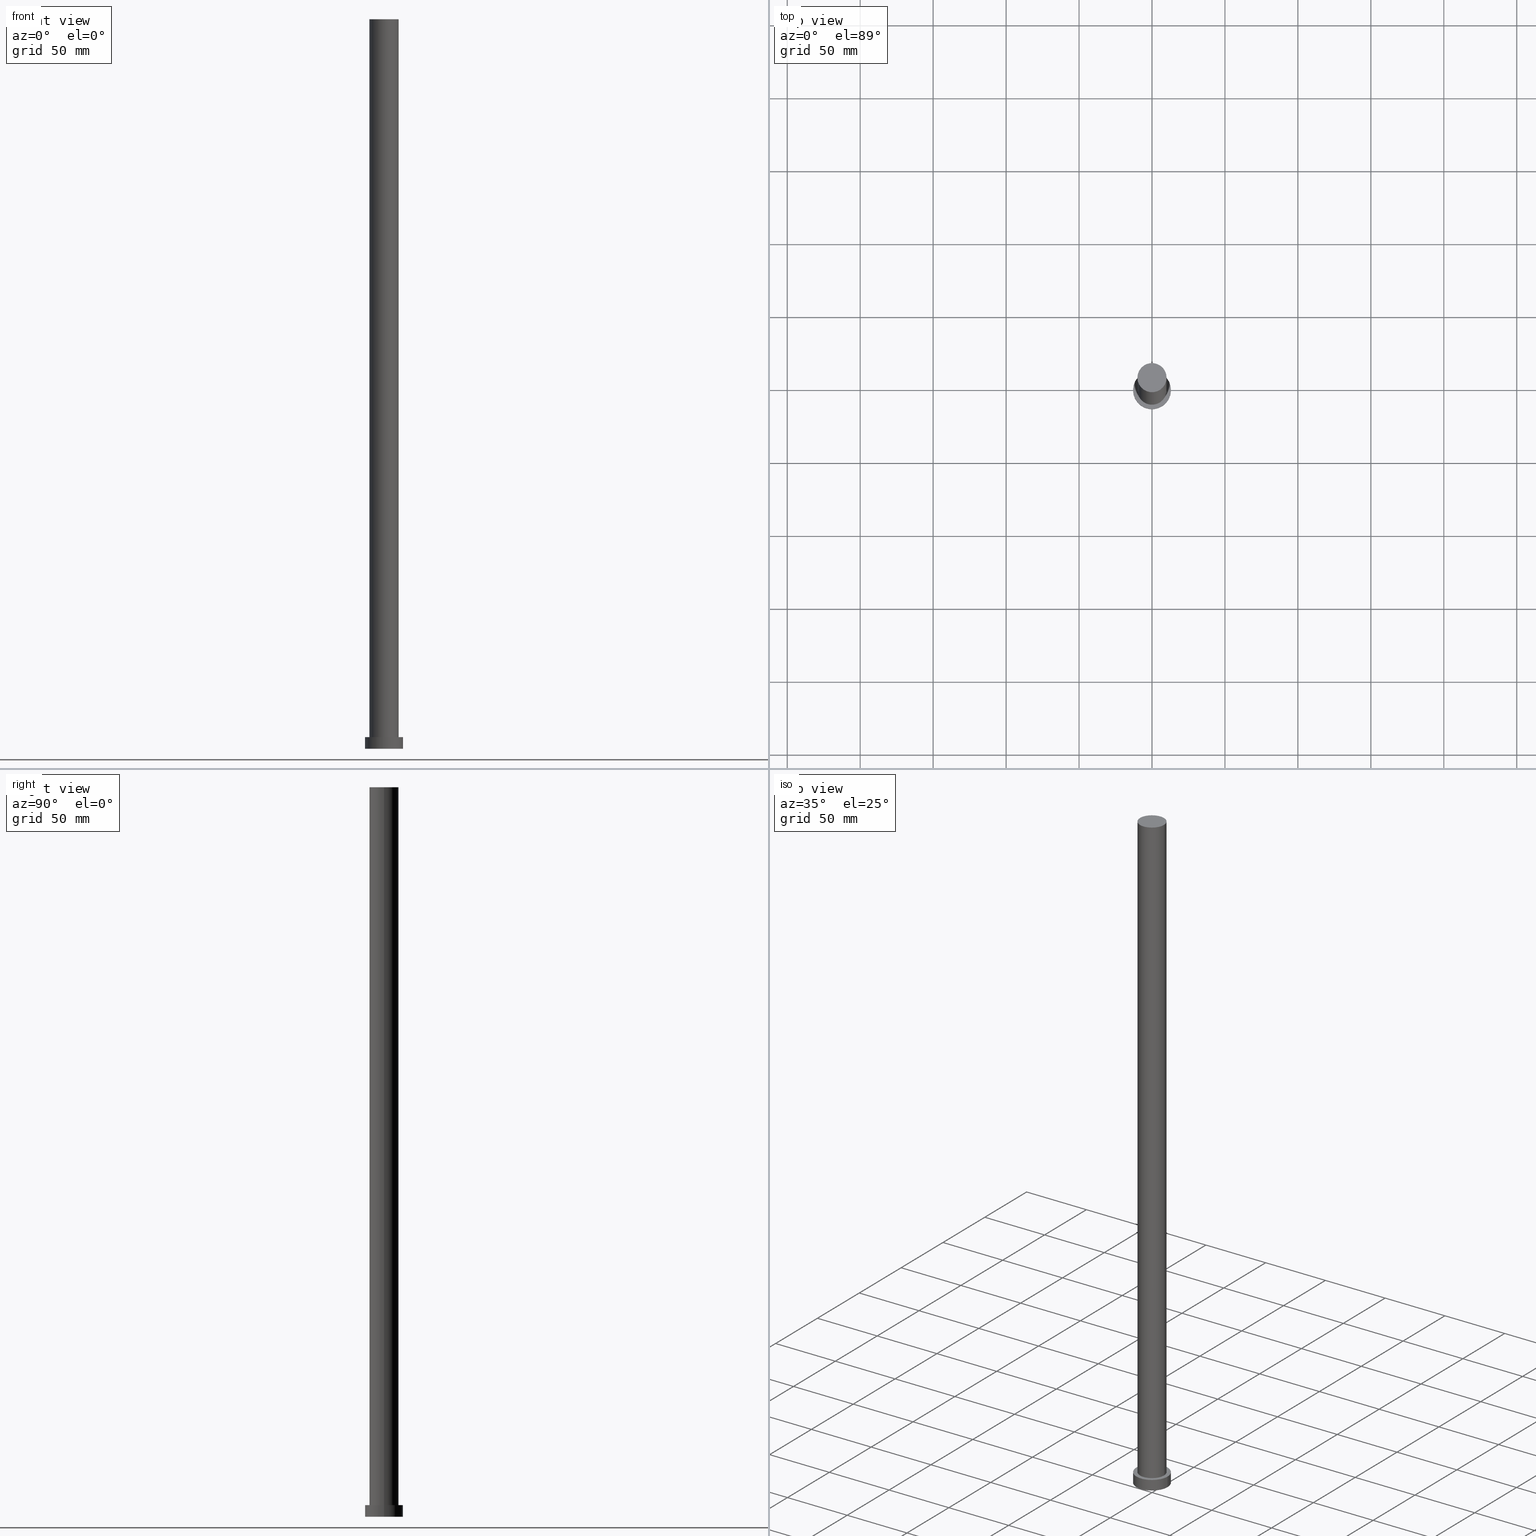
[diagram: canonical four-view strip — front | top / right | iso, engineering-drawing reading convention]
A machine part, canonical four-view strip (front | top / right | iso — engineering-drawing reading convention). The complete STEP part file that produces these views, byte-faithful:
ISO-10303-21;
HEADER;
FILE_DESCRIPTION (( 'STEP AP203' ),
    '1' );
FILE_NAME ('dbc2.STEP',
    '2023-02-13T08:43:27',
    ( '' ),
    ( '' ),
    'SwSTEP 2.0',
    'SolidWorks 2019',
    '' );
FILE_SCHEMA (( 'CONFIG_CONTROL_DESIGN' ));
ENDSEC;

DATA;
#1 = CARTESIAN_POINT ( 'NONE',  ( -13.00000000000000178, 0.000000000000000000, 8.000000000000000000 ) ) ;
#2 = LOCAL_TIME ( 9, 43, 27.00000000000000000, #206 ) ;
#3 = CARTESIAN_POINT ( 'NONE',  ( 0.000000000000000000, 0.000000000000000000, 500.0000000000000000 ) ) ;
#4 = EDGE_CURVE ( 'NONE', #25, #56, #87, .T. ) ;
#5 = FACE_OUTER_BOUND ( 'NONE', #20, .T. ) ;
#6 = PERSON ( 'NEUR�EN�', 'NEUR�EN�', 'NEUR�EN�', ('NEUR�EN�'), ('NEUR�EN�'), ('NEUR�EN�') ) ;
#7 = ADVANCED_FACE ( 'NONE', ( #208 ), #131, .F. ) ;
#8 = CYLINDRICAL_SURFACE ( 'NONE', #125, 13.00000000000000178 ) ;
#9 = PERSON_AND_ORGANIZATION ( #6, #83 ) ;
#10 = DIRECTION ( 'NONE',  ( -0.000000000000000000, -0.000000000000000000, -1.000000000000000000 ) ) ;
#11 = COORDINATED_UNIVERSAL_TIME_OFFSET ( 1, 0, .AHEAD. ) ;
#12 = DIRECTION ( 'NONE',  ( 0.000000000000000000, 0.000000000000000000, 1.000000000000000000 ) ) ;
#13 = APPLICATION_CONTEXT ( 'configuration controlled 3d designs of mechanical parts and assemblies' ) ;
#14 = VERTEX_POINT ( 'NONE', #84 ) ;
#15 = SECURITY_CLASSIFICATION_LEVEL ( 'unclassified' ) ;
#16 = DIRECTION ( 'NONE',  ( -0.000000000000000000, -0.000000000000000000, -1.000000000000000000 ) ) ;
#17 = ORIENTED_EDGE ( 'NONE', *, *, #60, .T. ) ;
#18 = CALENDAR_DATE ( 2023, 13, 2 ) ;
#19 = DIRECTION ( 'NONE',  ( 0.000000000000000000, 0.000000000000000000, 1.000000000000000000 ) ) ;
#20 = EDGE_LOOP ( 'NONE', ( #226, #59, #42, #55 ) ) ;
#21 = VECTOR ( 'NONE', #33, 1000.000000000000000 ) ;
#22 = CARTESIAN_POINT ( 'NONE',  ( -13.00000000000000178, 0.000000000000000000, 0.000000000000000000 ) ) ;
#23 = APPLICATION_CONTEXT ( 'configuration controlled 3d designs of mechanical parts and assemblies' ) ;
#24 = PERSON_AND_ORGANIZATION ( #6, #83 ) ;
#25 = VERTEX_POINT ( 'NONE', #220 ) ;
#26 = EDGE_CURVE ( 'NONE', #56, #105, #240, .T. ) ;
#27 = CARTESIAN_POINT ( 'NONE',  ( 0.000000000000000000, 0.000000000000000000, 500.0000000000000000 ) ) ;
#28 = APPROVAL_STATUS ( 'not_yet_approved' ) ;
#29 = CARTESIAN_POINT ( 'NONE',  ( 0.000000000000000000, 0.000000000000000000, 8.000000000000000000 ) ) ;
#30 = PERSON_AND_ORGANIZATION_ROLE ( 'creator' ) ;
#31 = DIRECTION ( 'NONE',  ( 1.000000000000000000, 0.000000000000000000, 0.000000000000000000 ) ) ;
#32 = PERSON_AND_ORGANIZATION ( #6, #83 ) ;
#33 = DIRECTION ( 'NONE',  ( -0.000000000000000000, -0.000000000000000000, -1.000000000000000000 ) ) ;
#34 = PERSON_AND_ORGANIZATION ( #6, #83 ) ;
#35 = APPROVAL_PERSON_ORGANIZATION ( #24, #95, #86 ) ;
#36 = PRODUCT_DEFINITION ( 'NEZN�M�', '', #215, #197 ) ;
#37 = CALENDAR_DATE ( 2023, 13, 2 ) ;
#38 =( LENGTH_UNIT ( ) NAMED_UNIT ( * ) SI_UNIT ( .MILLI., .METRE. ) );
#39 = CIRCLE ( 'NONE', #134, 13.00000000000000178 ) ;
#40 = ORIENTED_EDGE ( 'NONE', *, *, #164, .T. ) ;
#41 = EDGE_LOOP ( 'NONE', ( #178, #253 ) ) ;
#42 = ORIENTED_EDGE ( 'NONE', *, *, #137, .T. ) ;
#43 = CIRCLE ( 'NONE', #158, 10.00000000000000178 ) ;
#44 = COORDINATED_UNIVERSAL_TIME_OFFSET ( 1, 0, .AHEAD. ) ;
#45 = DIRECTION ( 'NONE',  ( -0.000000000000000000, -0.000000000000000000, -1.000000000000000000 ) ) ;
#46 = LOCAL_TIME ( 9, 43, 27.00000000000000000, #44 ) ;
#47 = CARTESIAN_POINT ( 'NONE',  ( 0.000000000000000000, 0.000000000000000000, 500.0000000000000000 ) ) ;
#48 = FACE_OUTER_BOUND ( 'NONE', #108, .T. ) ;
#49 = CC_DESIGN_SECURITY_CLASSIFICATION ( #170, ( #215 ) ) ;
#50 = CARTESIAN_POINT ( 'NONE',  ( -10.00000000000000178, 0.000000000000000000, 8.000000000000000000 ) ) ;
#51 = ORIENTED_EDGE ( 'NONE', *, *, #207, .F. ) ;
#52 = DIRECTION ( 'NONE',  ( -0.000000000000000000, -0.000000000000000000, -1.000000000000000000 ) ) ;
#53 = AXIS2_PLACEMENT_3D ( 'NONE', #239, #110, #184 ) ;
#54 = DIRECTION ( 'NONE',  ( -0.000000000000000000, -0.000000000000000000, -1.000000000000000000 ) ) ;
#55 = ORIENTED_EDGE ( 'NONE', *, *, #4, .F. ) ;
#56 = VERTEX_POINT ( 'NONE', #22 ) ;
#57 = LOCAL_TIME ( 9, 43, 27.00000000000000000, #248 ) ;
#58 = APPROVAL ( #28, 'NEUR�EN�' ) ;
#59 = ORIENTED_EDGE ( 'NONE', *, *, #129, .T. ) ;
#60 = EDGE_CURVE ( 'NONE', #25, #203, #167, .T. ) ;
#61 = DIRECTION ( 'NONE',  ( 1.000000000000000000, 0.000000000000000000, 0.000000000000000000 ) ) ;
#62 = PRODUCT_RELATED_PRODUCT_CATEGORY ( 'detail', '', ( #201 ) ) ;
#63 = DIRECTION ( 'NONE',  ( 0.000000000000000000, 0.000000000000000000, 1.000000000000000000 ) ) ;
#64 = CARTESIAN_POINT ( 'NONE',  ( 0.000000000000000000, 0.000000000000000000, 0.000000000000000000 ) ) ;
#65 = DIRECTION ( 'NONE',  ( 1.000000000000000000, 0.000000000000000000, 0.000000000000000000 ) ) ;
#66 = CARTESIAN_POINT ( 'NONE',  ( 10.00000000000000178, 1.224646799147353454E-15, 8.000000000000000000 ) ) ;
#67 =( GEOMETRIC_REPRESENTATION_CONTEXT ( 3 ) GLOBAL_UNCERTAINTY_ASSIGNED_CONTEXT ( ( #69 ) ) GLOBAL_UNIT_ASSIGNED_CONTEXT ( ( #38, #149, #219 ) ) REPRESENTATION_CONTEXT ( 'NONE', 'WORKASPACE' ) );
#68 = CYLINDRICAL_SURFACE ( 'NONE', #179, 10.00000000000000178 ) ;
#69 = UNCERTAINTY_MEASURE_WITH_UNIT (LENGTH_MEASURE( 1.000000000000000082E-05 ), #38, 'distance_accuracy_value', 'NONE');
#70 = DIRECTION ( 'NONE',  ( 0.000000000000000000, 0.000000000000000000, 1.000000000000000000 ) ) ;
#71 = EDGE_CURVE ( 'NONE', #82, #216, #128, .T. ) ;
#72 = LINE ( 'NONE', #210, #21 ) ;
#73 = MANIFOLD_SOLID_BREP ( 'P�idat vysunut�m3', #80 ) ;
#74 = DATE_TIME_ROLE ( 'classification_date' ) ;
#75 = AXIS2_PLACEMENT_3D ( 'NONE', #3, #63, #78 ) ;
#76 = DIRECTION ( 'NONE',  ( -1.000000000000000000, 0.000000000000000000, 0.000000000000000000 ) ) ;
#77 = ADVANCED_FACE ( 'NONE', ( #227 ), #96, .T. ) ;
#78 = DIRECTION ( 'NONE',  ( 1.000000000000000000, 0.000000000000000000, -0.000000000000000000 ) ) ;
#79 = AXIS2_PLACEMENT_3D ( 'NONE', #241, #136, #211 ) ;
#80 = CLOSED_SHELL ( 'NONE', ( #77, #144, #192, #188, #7, #202, #250 ) ) ;
#81 = ORIENTED_EDGE ( 'NONE', *, *, #207, .T. ) ;
#82 = VERTEX_POINT ( 'NONE', #66 ) ;
#83 = ORGANIZATION ( 'NEUR�EN�', 'NEUR�EN�', '' ) ;
#84 = CARTESIAN_POINT ( 'NONE',  ( -10.00000000000000178, 0.000000000000000000, 500.0000000000000000 ) ) ;
#85 = DIRECTION ( 'NONE',  ( 0.000000000000000000, 0.000000000000000000, 1.000000000000000000 ) ) ;
#86 = APPROVAL_ROLE ( '' ) ;
#87 = LINE ( 'NONE', #1, #107 ) ;
#88 = VECTOR ( 'NONE', #54, 1000.000000000000000 ) ;
#89 = PERSON_AND_ORGANIZATION ( #6, #83 ) ;
#90 = CARTESIAN_POINT ( 'NONE',  ( 0.000000000000000000, 0.000000000000000000, 8.000000000000000000 ) ) ;
#91 = CC_DESIGN_PERSON_AND_ORGANIZATION_ASSIGNMENT ( #155, #251, ( #215 ) ) ;
#92 = APPROVAL_STATUS ( 'not_yet_approved' ) ;
#93 = DIRECTION ( 'NONE',  ( 1.000000000000000000, 0.000000000000000000, 0.000000000000000000 ) ) ;
#94 = CIRCLE ( 'NONE', #166, 10.00000000000000178 ) ;
#95 = APPROVAL ( #92, 'NEUR�EN�' ) ;
#96 = CYLINDRICAL_SURFACE ( 'NONE', #183, 10.00000000000000178 ) ;
#97 = FACE_OUTER_BOUND ( 'NONE', #181, .T. ) ;
#98 = ORIENTED_EDGE ( 'NONE', *, *, #218, .T. ) ;
#99 = DIRECTION ( 'NONE',  ( 1.000000000000000000, 0.000000000000000000, 0.000000000000000000 ) ) ;
#100 = ORIENTED_EDGE ( 'NONE', *, *, #26, .T. ) ;
#101 = CALENDAR_DATE ( 2023, 13, 2 ) ;
#102 = CC_DESIGN_PERSON_AND_ORGANIZATION_ASSIGNMENT ( #32, #30, ( #215 ) ) ;
#103 = SHAPE_DEFINITION_REPRESENTATION ( #254, #234 ) ;
#104 = AXIS2_PLACEMENT_3D ( 'NONE', #231, #70, #228 ) ;
#105 = VERTEX_POINT ( 'NONE', #213 ) ;
#106 = AXIS2_PLACEMENT_3D ( 'NONE', #185, #249, #99 ) ;
#107 = VECTOR ( 'NONE', #45, 1000.000000000000000 ) ;
#108 = EDGE_LOOP ( 'NONE', ( #152, #217, #163, #147 ) ) ;
#109 = EDGE_LOOP ( 'NONE', ( #51, #121, #182, #255 ) ) ;
#110 = DIRECTION ( 'NONE',  ( 0.000000000000000000, 0.000000000000000000, 1.000000000000000000 ) ) ;
#111 = APPROVAL_PERSON_ORGANIZATION ( #89, #160, #242 ) ;
#112 = PERSON_AND_ORGANIZATION_ROLE ( 'design_owner' ) ;
#113 = APPROVAL_DATE_TIME ( #190, #95 ) ;
#114 = EDGE_CURVE ( 'NONE', #216, #82, #94, .T. ) ;
#115 = DATE_TIME_ROLE ( 'creation_date' ) ;
#116 = CC_DESIGN_DATE_AND_TIME_ASSIGNMENT ( #214, #74, ( #170 ) ) ;
#117 = DIRECTION ( 'NONE',  ( 0.000000000000000000, 0.000000000000000000, 1.000000000000000000 ) ) ;
#118 = PERSON_AND_ORGANIZATION ( #6, #83 ) ;
#119 = DIRECTION ( 'NONE',  ( -0.000000000000000000, -0.000000000000000000, -1.000000000000000000 ) ) ;
#120 = DIRECTION ( 'NONE',  ( 1.000000000000000000, 0.000000000000000000, 0.000000000000000000 ) ) ;
#121 = ORIENTED_EDGE ( 'NONE', *, *, #235, .T. ) ;
#122 = FACE_OUTER_BOUND ( 'NONE', #229, .T. ) ;
#123 = DATE_AND_TIME ( #18, #244 ) ;
#124 = EDGE_CURVE ( 'NONE', #14, #216, #233, .T. ) ;
#125 = AXIS2_PLACEMENT_3D ( 'NONE', #90, #119, #153 ) ;
#126 = CC_DESIGN_PERSON_AND_ORGANIZATION_ASSIGNMENT ( #161, #175, ( #170 ) ) ;
#127 = AXIS2_PLACEMENT_3D ( 'NONE', #191, #225, #245 ) ;
#128 = CIRCLE ( 'NONE', #177, 10.00000000000000178 ) ;
#129 = EDGE_CURVE ( 'NONE', #203, #105, #72, .T. ) ;
#130 = ORIENTED_EDGE ( 'NONE', *, *, #137, .F. ) ;
#131 = PLANE ( 'NONE',  #53 ) ;
#132 = AXIS2_PLACEMENT_3D ( 'NONE', #145, #117, #187 ) ;
#133 = PERSON_AND_ORGANIZATION_ROLE ( 'creator' ) ;
#134 = AXIS2_PLACEMENT_3D ( 'NONE', #29, #141, #120 ) ;
#135 = APPROVAL_STATUS ( 'not_yet_approved' ) ;
#136 = DIRECTION ( 'NONE',  ( 0.000000000000000000, 0.000000000000000000, 1.000000000000000000 ) ) ;
#137 = EDGE_CURVE ( 'NONE', #105, #56, #232, .T. ) ;
#138 = CALENDAR_DATE ( 2023, 13, 2 ) ;
#139 = CARTESIAN_POINT ( 'NONE',  ( 0.000000000000000000, 0.000000000000000000, 500.0000000000000000 ) ) ;
#140 = APPROVAL_DATE_TIME ( #123, #160 ) ;
#141 = DIRECTION ( 'NONE',  ( 0.000000000000000000, 0.000000000000000000, 1.000000000000000000 ) ) ;
#142 = FACE_OUTER_BOUND ( 'NONE', #157, .T. ) ;
#143 = AXIS2_PLACEMENT_3D ( 'NONE', #64, #85, #65 ) ;
#144 = ADVANCED_FACE ( 'NONE', ( #5 ), #8, .T. ) ;
#145 = CARTESIAN_POINT ( 'NONE',  ( 0.000000000000000000, 0.000000000000000000, 0.000000000000000000 ) ) ;
#146 = CC_DESIGN_APPROVAL ( #160, ( #215 ) ) ;
#147 = ORIENTED_EDGE ( 'NONE', *, *, #114, .T. ) ;
#148 = ORIENTED_EDGE ( 'NONE', *, *, #129, .F. ) ;
#149 =( NAMED_UNIT ( * ) PLANE_ANGLE_UNIT ( ) SI_UNIT ( $, .RADIAN. ) );
#150 = CC_DESIGN_PERSON_AND_ORGANIZATION_ASSIGNMENT ( #118, #112, ( #201 ) ) ;
#151 = CARTESIAN_POINT ( 'NONE',  ( 0.000000000000000000, 0.000000000000000000, 8.000000000000000000 ) ) ;
#152 = ORIENTED_EDGE ( 'NONE', *, *, #235, .F. ) ;
#153 = DIRECTION ( 'NONE',  ( -1.000000000000000000, 0.000000000000000000, 0.000000000000000000 ) ) ;
#154 = CARTESIAN_POINT ( 'NONE',  ( 10.00000000000000178, 1.224646799147353454E-15, 500.0000000000000000 ) ) ;
#155 = PERSON_AND_ORGANIZATION ( #6, #83 ) ;
#156 = CYLINDRICAL_SURFACE ( 'NONE', #127, 13.00000000000000178 ) ;
#157 = EDGE_LOOP ( 'NONE', ( #40, #81 ) ) ;
#158 = AXIS2_PLACEMENT_3D ( 'NONE', #47, #12, #93 ) ;
#159 = DIRECTION ( 'NONE',  ( 0.000000000000000000, 0.000000000000000000, 1.000000000000000000 ) ) ;
#160 = APPROVAL ( #135, 'NEUR�EN�' ) ;
#161 = PERSON_AND_ORGANIZATION ( #6, #83 ) ;
#162 = VERTEX_POINT ( 'NONE', #154 ) ;
#163 = ORIENTED_EDGE ( 'NONE', *, *, #124, .T. ) ;
#164 = EDGE_CURVE ( 'NONE', #14, #162, #43, .T. ) ;
#165 = APPLICATION_PROTOCOL_DEFINITION ( 'international standard', 'config_control_design', 1994, #13 ) ;
#166 = AXIS2_PLACEMENT_3D ( 'NONE', #189, #159, #31 ) ;
#167 = CIRCLE ( 'NONE', #106, 13.00000000000000178 ) ;
#168 = CC_DESIGN_APPROVAL ( #58, ( #170 ) ) ;
#169 = FACE_BOUND ( 'NONE', #41, .T. ) ;
#170 = SECURITY_CLASSIFICATION ( '', '', #15 ) ;
#171 = DIRECTION ( 'NONE',  ( -1.000000000000000000, 0.000000000000000000, 0.000000000000000000 ) ) ;
#172 = LOCAL_TIME ( 9, 43, 27.00000000000000000, #11 ) ;
#173 = LINE ( 'NONE', #247, #224 ) ;
#174 = ORIENTED_EDGE ( 'NONE', *, *, #60, .F. ) ;
#175 = PERSON_AND_ORGANIZATION_ROLE ( 'classification_officer' ) ;
#176 = DIRECTION ( 'NONE',  ( 1.000000000000000000, 0.000000000000000000, 0.000000000000000000 ) ) ;
#177 = AXIS2_PLACEMENT_3D ( 'NONE', #151, #195, #176 ) ;
#178 = ORIENTED_EDGE ( 'NONE', *, *, #114, .F. ) ;
#179 = AXIS2_PLACEMENT_3D ( 'NONE', #27, #10, #171 ) ;
#180 = EDGE_LOOP ( 'NONE', ( #194, #130 ) ) ;
#181 = EDGE_LOOP ( 'NONE', ( #17, #98 ) ) ;
#182 = ORIENTED_EDGE ( 'NONE', *, *, #71, .T. ) ;
#183 = AXIS2_PLACEMENT_3D ( 'NONE', #139, #16, #76 ) ;
#184 = DIRECTION ( 'NONE',  ( 1.000000000000000000, 0.000000000000000000, -0.000000000000000000 ) ) ;
#185 = CARTESIAN_POINT ( 'NONE',  ( 0.000000000000000000, 0.000000000000000000, 8.000000000000000000 ) ) ;
#186 = CALENDAR_DATE ( 2023, 13, 2 ) ;
#187 = DIRECTION ( 'NONE',  ( 1.000000000000000000, 0.000000000000000000, 0.000000000000000000 ) ) ;
#188 = ADVANCED_FACE ( 'NONE', ( #169, #97 ), #193, .T. ) ;
#189 = CARTESIAN_POINT ( 'NONE',  ( 0.000000000000000000, 0.000000000000000000, 8.000000000000000000 ) ) ;
#190 = DATE_AND_TIME ( #138, #46 ) ;
#191 = CARTESIAN_POINT ( 'NONE',  ( 0.000000000000000000, 0.000000000000000000, 8.000000000000000000 ) ) ;
#192 = ADVANCED_FACE ( 'NONE', ( #122 ), #156, .T. ) ;
#193 = PLANE ( 'NONE',  #79 ) ;
#194 = ORIENTED_EDGE ( 'NONE', *, *, #26, .F. ) ;
#195 = DIRECTION ( 'NONE',  ( 0.000000000000000000, 0.000000000000000000, 1.000000000000000000 ) ) ;
#196 = APPROVAL_PERSON_ORGANIZATION ( #34, #58, #199 ) ;
#197 = DESIGN_CONTEXT ( 'detailed design', #23, 'design' ) ;
#198 = CC_DESIGN_APPROVAL ( #95, ( #36 ) ) ;
#199 = APPROVAL_ROLE ( '' ) ;
#200 = APPROVAL_DATE_TIME ( #230, #58 ) ;
#201 = PRODUCT ( 'dbc2', 'dbc2', '', ( #238 ) ) ;
#202 = ADVANCED_FACE ( 'NONE', ( #48 ), #68, .T. ) ;
#203 = VERTEX_POINT ( 'NONE', #246 ) ;
#204 = ORIENTED_EDGE ( 'NONE', *, *, #4, .T. ) ;
#205 = CC_DESIGN_DATE_AND_TIME_ASSIGNMENT ( #223, #115, ( #36 ) ) ;
#206 = COORDINATED_UNIVERSAL_TIME_OFFSET ( 1, 0, .AHEAD. ) ;
#207 = EDGE_CURVE ( 'NONE', #162, #14, #221, .T. ) ;
#208 = FACE_OUTER_BOUND ( 'NONE', #180, .T. ) ;
#209 = CARTESIAN_POINT ( 'NONE',  ( -10.00000000000000178, 0.000000000000000000, 500.0000000000000000 ) ) ;
#210 = CARTESIAN_POINT ( 'NONE',  ( 13.00000000000000178, 1.592040838891559293E-15, 8.000000000000000000 ) ) ;
#211 = DIRECTION ( 'NONE',  ( 1.000000000000000000, 0.000000000000000000, -0.000000000000000000 ) ) ;
#212 = PLANE ( 'NONE',  #75 ) ;
#213 = CARTESIAN_POINT ( 'NONE',  ( 13.00000000000000178, 1.592040838891559293E-15, 0.000000000000000000 ) ) ;
#214 = DATE_AND_TIME ( #37, #57 ) ;
#215 = PRODUCT_DEFINITION_FORMATION_WITH_SPECIFIED_SOURCE ( 'LIBOVOLN�', '', #201, .NOT_KNOWN. ) ;
#216 = VERTEX_POINT ( 'NONE', #50 ) ;
#217 = ORIENTED_EDGE ( 'NONE', *, *, #164, .F. ) ;
#218 = EDGE_CURVE ( 'NONE', #203, #25, #39, .T. ) ;
#219 =( NAMED_UNIT ( * ) SI_UNIT ( $, .STERADIAN. ) SOLID_ANGLE_UNIT ( ) );
#220 = CARTESIAN_POINT ( 'NONE',  ( -13.00000000000000178, 0.000000000000000000, 8.000000000000000000 ) ) ;
#221 = CIRCLE ( 'NONE', #104, 10.00000000000000178 ) ;
#222 = APPLICATION_PROTOCOL_DEFINITION ( 'international standard', 'config_control_design', 1994, #23 ) ;
#223 = DATE_AND_TIME ( #186, #2 ) ;
#224 = VECTOR ( 'NONE', #52, 1000.000000000000000 ) ;
#225 = DIRECTION ( 'NONE',  ( -0.000000000000000000, -0.000000000000000000, -1.000000000000000000 ) ) ;
#226 = ORIENTED_EDGE ( 'NONE', *, *, #218, .F. ) ;
#227 = FACE_OUTER_BOUND ( 'NONE', #109, .T. ) ;
#228 = DIRECTION ( 'NONE',  ( 1.000000000000000000, 0.000000000000000000, 0.000000000000000000 ) ) ;
#229 = EDGE_LOOP ( 'NONE', ( #148, #174, #204, #100 ) ) ;
#230 = DATE_AND_TIME ( #101, #172 ) ;
#231 = CARTESIAN_POINT ( 'NONE',  ( 0.000000000000000000, 0.000000000000000000, 500.0000000000000000 ) ) ;
#232 = CIRCLE ( 'NONE', #132, 13.00000000000000178 ) ;
#233 = LINE ( 'NONE', #209, #88 ) ;
#234 = ADVANCED_BREP_SHAPE_REPRESENTATION ( 'dbc2', ( #73, #237 ), #67 ) ;
#235 = EDGE_CURVE ( 'NONE', #162, #82, #173, .T. ) ;
#236 = CARTESIAN_POINT ( 'NONE',  ( 0.000000000000000000, 0.000000000000000000, 0.000000000000000000 ) ) ;
#237 = AXIS2_PLACEMENT_3D ( 'NONE', #236, #19, #61 ) ;
#238 = MECHANICAL_CONTEXT ( 'NONE', #13, 'mechanical' ) ;
#239 = CARTESIAN_POINT ( 'NONE',  ( 0.000000000000000000, 0.000000000000000000, 0.000000000000000000 ) ) ;
#240 = CIRCLE ( 'NONE', #143, 13.00000000000000178 ) ;
#241 = CARTESIAN_POINT ( 'NONE',  ( 0.000000000000000000, 0.000000000000000000, 8.000000000000000000 ) ) ;
#242 = APPROVAL_ROLE ( '' ) ;
#243 = CC_DESIGN_PERSON_AND_ORGANIZATION_ASSIGNMENT ( #9, #133, ( #36 ) ) ;
#244 = LOCAL_TIME ( 9, 43, 27.00000000000000000, #252 ) ;
#245 = DIRECTION ( 'NONE',  ( -1.000000000000000000, 0.000000000000000000, 0.000000000000000000 ) ) ;
#246 = CARTESIAN_POINT ( 'NONE',  ( 13.00000000000000178, 1.592040838891559293E-15, 8.000000000000000000 ) ) ;
#247 = CARTESIAN_POINT ( 'NONE',  ( 10.00000000000000178, 1.224646799147353454E-15, 500.0000000000000000 ) ) ;
#248 = COORDINATED_UNIVERSAL_TIME_OFFSET ( 1, 0, .AHEAD. ) ;
#249 = DIRECTION ( 'NONE',  ( 0.000000000000000000, 0.000000000000000000, 1.000000000000000000 ) ) ;
#250 = ADVANCED_FACE ( 'NONE', ( #142 ), #212, .T. ) ;
#251 = PERSON_AND_ORGANIZATION_ROLE ( 'design_supplier' ) ;
#252 = COORDINATED_UNIVERSAL_TIME_OFFSET ( 1, 0, .AHEAD. ) ;
#253 = ORIENTED_EDGE ( 'NONE', *, *, #71, .F. ) ;
#254 = PRODUCT_DEFINITION_SHAPE ( 'NONE', 'NONE',  #36 ) ;
#255 = ORIENTED_EDGE ( 'NONE', *, *, #124, .F. ) ;
ENDSEC;
END-ISO-10303-21;
